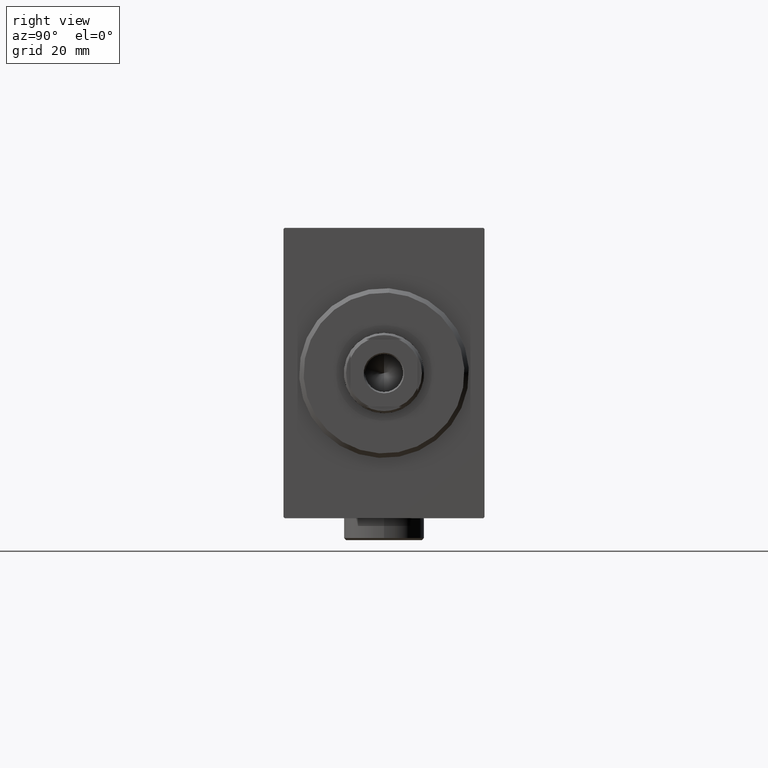
[diagram: clean part render]
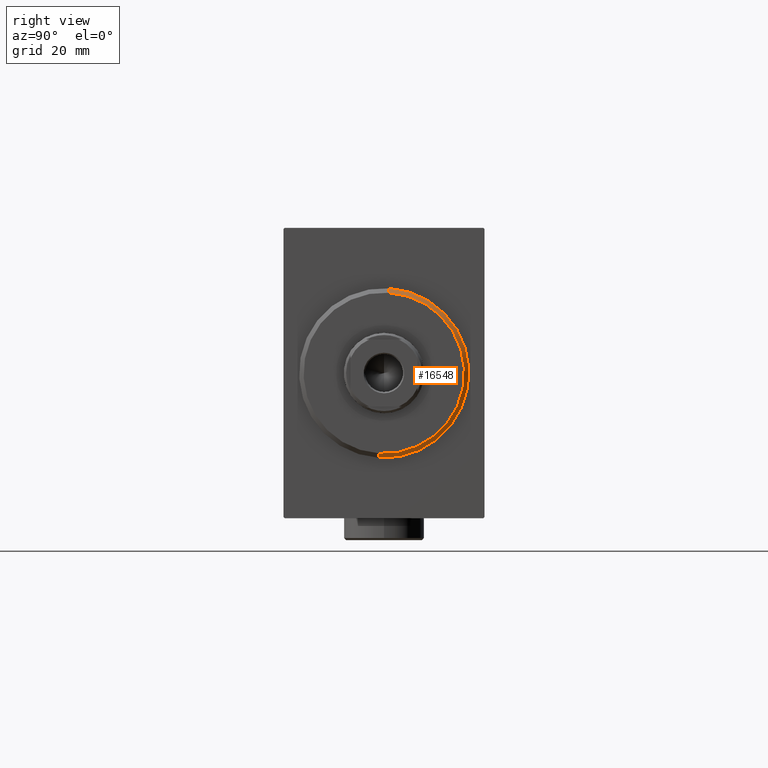
[diagram: same view with one face highlighted and labeled with its STEP entity id]
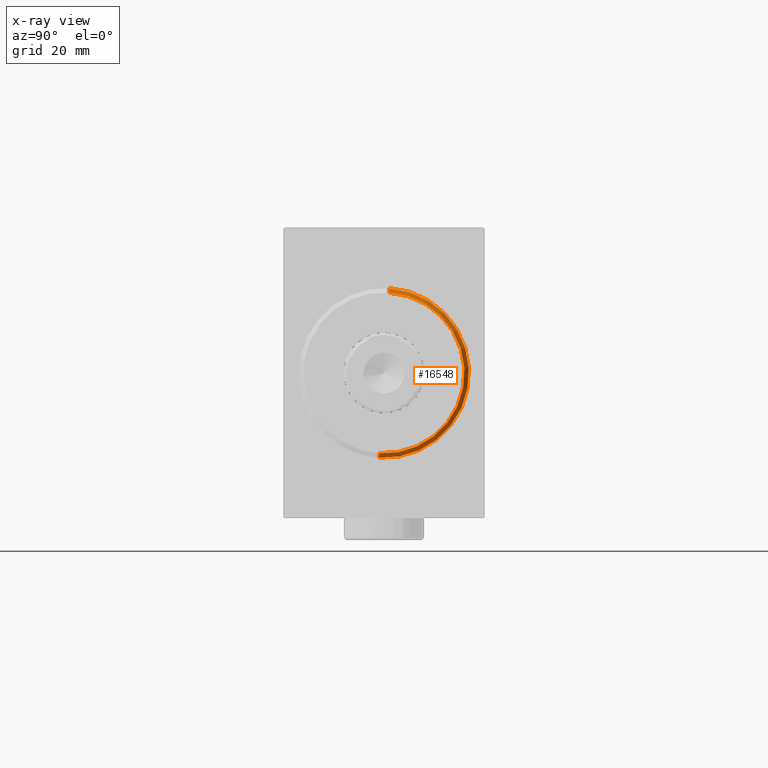
[diagram: x-ray of the same camera — body ghosted, the highlighted face saturated]
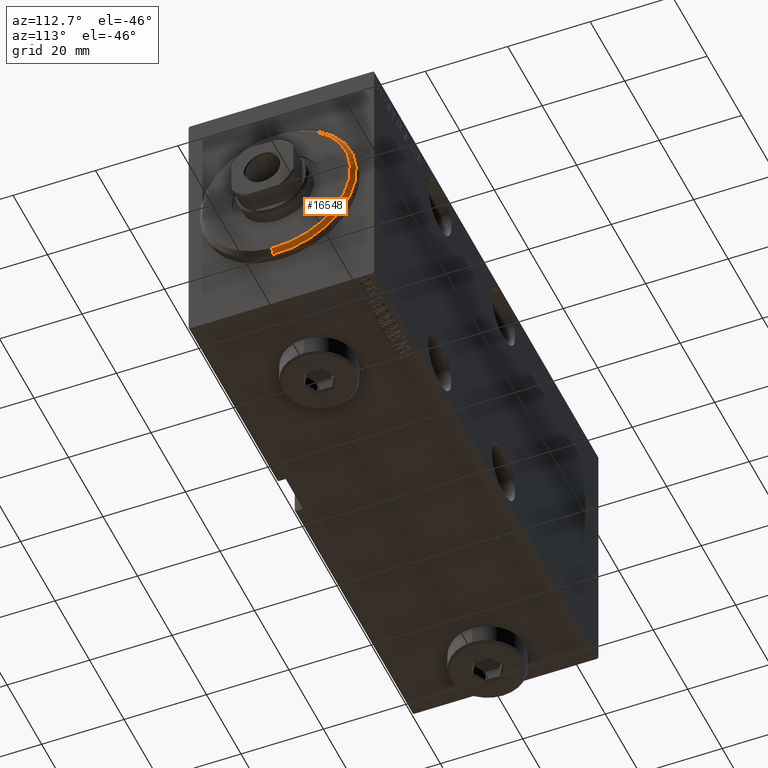
[diagram: same view with one face highlighted and labeled with its STEP entity id]
A machine part, right view. The second image highlights one B-rep face of the part: STEP entity #16548.
The next image is the same camera in x-ray: the body ghosted, the highlighted face saturated — about 0% of this face is hidden behind the body in this view.
A second angle (auxiliary view) of the same face is appended — the face is thin or edge-on in the first view.
In plain terms, the highlighted conical surface has half-angle 45 deg.
Its self-contained STEP definition (entity closure, byte-faithful):
#936 = EDGE_CURVE ( 'NONE', #25313, #37832, #26955, .T. ) ;
#2415 = AXIS2_PLACEMENT_3D ( 'NONE', #42817, #25709, #5215 ) ;
#3668 = CARTESIAN_POINT ( 'NONE',  ( 1.999999999999992228, 0.000000000000000000, 19.00000000000000000 ) ) ;
#5215 = DIRECTION ( 'NONE',  ( 0.000000000000000000, 0.000000000000000000, 1.000000000000000000 ) ) ;
#5684 = EDGE_CURVE ( 'NONE', #11394, #11679, #18755, .T. ) ;
#6874 = CARTESIAN_POINT ( 'NONE',  ( 3.000000000000000000, 0.000000000000000000, 17.99999999999999645 ) ) ;
#7630 = ORIENTED_EDGE ( 'NONE', *, *, #22248, .F. ) ;
#8714 = DIRECTION ( 'NONE',  ( 0.000000000000000000, 0.000000000000000000, -1.000000000000000000 ) ) ;
#8843 = EDGE_LOOP ( 'NONE', ( #7630, #40926, #33060, #41487 ) ) ;
#9246 = FACE_OUTER_BOUND ( 'NONE', #8843, .T. ) ;
#9604 = DIRECTION ( 'NONE',  ( 1.000000000000000000, -0.000000000000000000, 0.000000000000000000 ) ) ;
#10252 = CARTESIAN_POINT ( 'NONE',  ( 3.000000000000000000, 2.265596578422603002E-15, -17.99999999999999645 ) ) ;
#11394 = VERTEX_POINT ( 'NONE', #6874 ) ;
#11625 = EDGE_CURVE ( 'NONE', #11679, #37832, #13081, .T. ) ;
#11679 = VERTEX_POINT ( 'NONE', #3668 ) ;
#13081 = CIRCLE ( 'NONE', #35385, 19.00000000000000000 ) ;
#13293 = CARTESIAN_POINT ( 'NONE',  ( 1.999999999999992228, 2.326828918379970970E-15, -19.00000000000000000 ) ) ;
#14639 = CONICAL_SURFACE ( 'NONE', #2415, 17.99999999999999645, 0.7853981633974466137 ) ;
#16548 = ADVANCED_FACE ( 'NONE', ( #9246 ), #14639, .T. ) ;
#16734 = DIRECTION ( 'NONE',  ( -1.000000000000000000, 0.000000000000000000, 0.000000000000000000 ) ) ;
#16810 = AXIS2_PLACEMENT_3D ( 'NONE', #32828, #9604, #8714 ) ;
#18755 = LINE ( 'NONE', #29114, #39518 ) ;
#18979 = DIRECTION ( 'NONE',  ( -0.7071067811865487940, 0.000000000000000000, 0.7071067811865463515 ) ) ;
#22248 = EDGE_CURVE ( 'NONE', #25313, #11394, #39130, .T. ) ;
#22941 = VECTOR ( 'NONE', #43389, 1000.000000000000000 ) ;
#23047 = DIRECTION ( 'NONE',  ( 0.000000000000000000, 0.000000000000000000, -1.000000000000000000 ) ) ;
#25313 = VERTEX_POINT ( 'NONE', #10252 ) ;
#25709 = DIRECTION ( 'NONE',  ( -1.000000000000000000, 0.000000000000000000, 0.000000000000000000 ) ) ;
#26955 = LINE ( 'NONE', #33712, #22941 ) ;
#29114 = CARTESIAN_POINT ( 'NONE',  ( 3.000000000000000000, 0.000000000000000000, 17.99999999999999645 ) ) ;
#32828 = CARTESIAN_POINT ( 'NONE',  ( 3.000000000000000000, 0.000000000000000000, 0.000000000000000000 ) ) ;
#33060 = ORIENTED_EDGE ( 'NONE', *, *, #11625, .F. ) ;
#33712 = CARTESIAN_POINT ( 'NONE',  ( 3.000000000000000000, 2.204364238465235033E-15, -17.99999999999999645 ) ) ;
#35385 = AXIS2_PLACEMENT_3D ( 'NONE', #43964, #16734, #23047 ) ;
#37832 = VERTEX_POINT ( 'NONE', #13293 ) ;
#39130 = CIRCLE ( 'NONE', #16810, 17.99999999999999645 ) ;
#39518 = VECTOR ( 'NONE', #18979, 1000.000000000000000 ) ;
#40926 = ORIENTED_EDGE ( 'NONE', *, *, #936, .T. ) ;
#41487 = ORIENTED_EDGE ( 'NONE', *, *, #5684, .F. ) ;
#42817 = CARTESIAN_POINT ( 'NONE',  ( 3.000000000000000000, 0.000000000000000000, 0.000000000000000000 ) ) ;
#43389 = DIRECTION ( 'NONE',  ( -0.7071067811865487940, 8.659560562354918067E-17, -0.7071067811865463515 ) ) ;
#43964 = CARTESIAN_POINT ( 'NONE',  ( 1.999999999999992228, 0.000000000000000000, 0.000000000000000000 ) ) ;